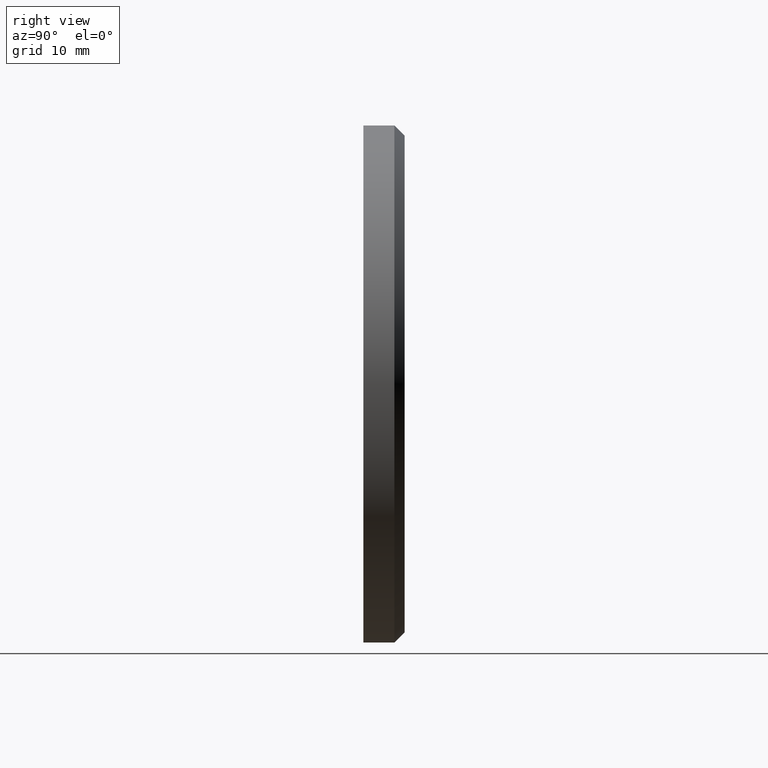
[diagram: clean part render]
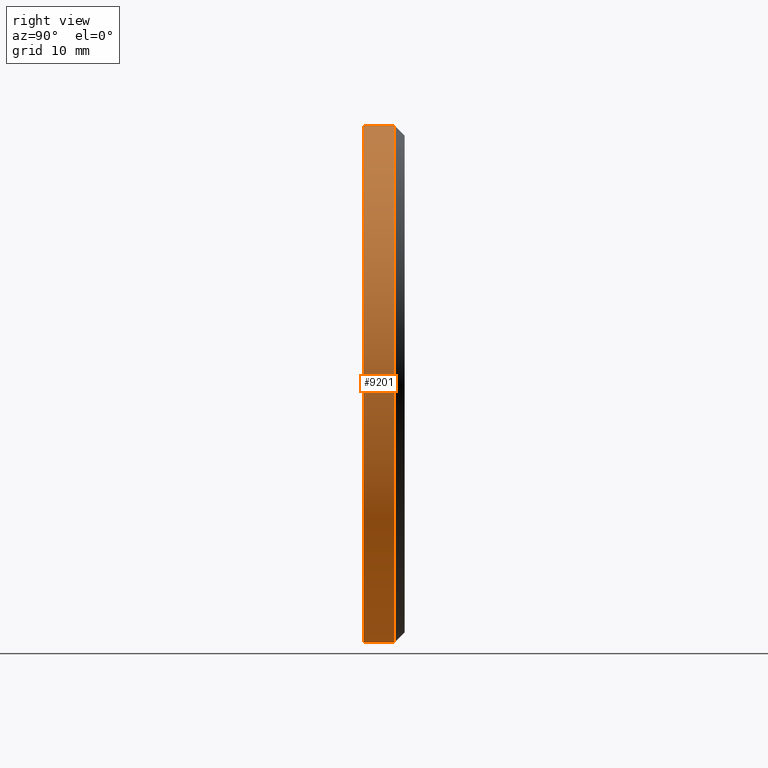
[diagram: same view with one face highlighted and labeled with its STEP entity id]
A machine part, right view. The second image highlights one B-rep face of the part: STEP entity #9201.
In plain terms, the highlighted cylindrical surface (partial cylindrical patch) has radius 25 mm, axis along (-0, -1, -0).
Its self-contained STEP definition (entity closure, byte-faithful):
#477 = AXIS2_PLACEMENT_3D ( 'NONE', #3201, #4264, #2027 ) ;
#555 = LINE ( 'NONE', #8810, #8962 ) ;
#1103 = CARTESIAN_POINT ( 'NONE',  ( 0.000000000000000000, 3.000000000000009770, 0.000000000000000000 ) ) ;
#1248 = DIRECTION ( 'NONE',  ( 0.000000000000000000, -1.000000000000000000, 0.000000000000000000 ) ) ;
#1446 = AXIS2_PLACEMENT_3D ( 'NONE', #4271, #15181, #12627 ) ;
#1640 = ORIENTED_EDGE ( 'NONE', *, *, #3066, .T. ) ;
#1851 = DIRECTION ( 'NONE',  ( -0.000000000000000000, -1.000000000000000000, -0.000000000000000000 ) ) ;
#2027 = DIRECTION ( 'NONE',  ( 0.000000000000000000, 0.000000000000000000, 1.000000000000000000 ) ) ;
#2067 = ORIENTED_EDGE ( 'NONE', *, *, #2174, .T. ) ;
#2174 = EDGE_CURVE ( 'NONE', #7714, #3689, #3366, .T. ) ;
#2895 = DIRECTION ( 'NONE',  ( -0.000000000000000000, -1.000000000000000000, -0.000000000000000000 ) ) ;
#2990 = CARTESIAN_POINT ( 'NONE',  ( 3.061616997868383043E-15, 4.000000000000000000, 25.00000000000000000 ) ) ;
#3066 = EDGE_CURVE ( 'NONE', #3689, #9892, #13473, .T. ) ;
#3201 = CARTESIAN_POINT ( 'NONE',  ( 0.000000000000000000, 0.000000000000000000, 0.000000000000000000 ) ) ;
#3366 = LINE ( 'NONE', #2990, #9579 ) ;
#3689 = VERTEX_POINT ( 'NONE', #7817 ) ;
#3716 = EDGE_LOOP ( 'NONE', ( #9287, #2067, #1640, #10755 ) ) ;
#3752 = EDGE_CURVE ( 'NONE', #12769, #7714, #4277, .T. ) ;
#4264 = DIRECTION ( 'NONE',  ( 0.000000000000000000, 1.000000000000000000, 0.000000000000000000 ) ) ;
#4271 = CARTESIAN_POINT ( 'NONE',  ( 0.000000000000000000, 4.000000000000000000, 0.000000000000000000 ) ) ;
#4277 = CIRCLE ( 'NONE', #10600, 25.00000000000000000 ) ;
#6248 = CARTESIAN_POINT ( 'NONE',  ( 0.000000000000000000, 0.000000000000000000, -25.00000000000000000 ) ) ;
#7714 = VERTEX_POINT ( 'NONE', #11060 ) ;
#7817 = CARTESIAN_POINT ( 'NONE',  ( 3.061616997868383043E-15, 0.000000000000000000, 25.00000000000000000 ) ) ;
#8062 = CYLINDRICAL_SURFACE ( 'NONE', #1446, 25.00000000000000000 ) ;
#8810 = CARTESIAN_POINT ( 'NONE',  ( 0.000000000000000000, 4.000000000000000000, -25.00000000000000000 ) ) ;
#8962 = VECTOR ( 'NONE', #2895, 1000.000000000000000 ) ;
#9201 = ADVANCED_FACE ( 'NONE', ( #9947 ), #8062, .T. ) ;
#9257 = CARTESIAN_POINT ( 'NONE',  ( 0.000000000000000000, 3.000000000000009770, -25.00000000000000000 ) ) ;
#9287 = ORIENTED_EDGE ( 'NONE', *, *, #3752, .T. ) ;
#9579 = VECTOR ( 'NONE', #1851, 1000.000000000000000 ) ;
#9892 = VERTEX_POINT ( 'NONE', #6248 ) ;
#9947 = FACE_OUTER_BOUND ( 'NONE', #3716, .T. ) ;
#10600 = AXIS2_PLACEMENT_3D ( 'NONE', #1103, #1248, #15399 ) ;
#10755 = ORIENTED_EDGE ( 'NONE', *, *, #11570, .F. ) ;
#11060 = CARTESIAN_POINT ( 'NONE',  ( 3.061616997868383043E-15, 3.000000000000009770, 25.00000000000000000 ) ) ;
#11570 = EDGE_CURVE ( 'NONE', #12769, #9892, #555, .T. ) ;
#12627 = DIRECTION ( 'NONE',  ( 0.000000000000000000, 0.000000000000000000, -1.000000000000000000 ) ) ;
#12769 = VERTEX_POINT ( 'NONE', #9257 ) ;
#13473 = CIRCLE ( 'NONE', #477, 25.00000000000000000 ) ;
#15181 = DIRECTION ( 'NONE',  ( -0.000000000000000000, -1.000000000000000000, -0.000000000000000000 ) ) ;
#15399 = DIRECTION ( 'NONE',  ( 0.000000000000000000, 0.000000000000000000, 1.000000000000000000 ) ) ;